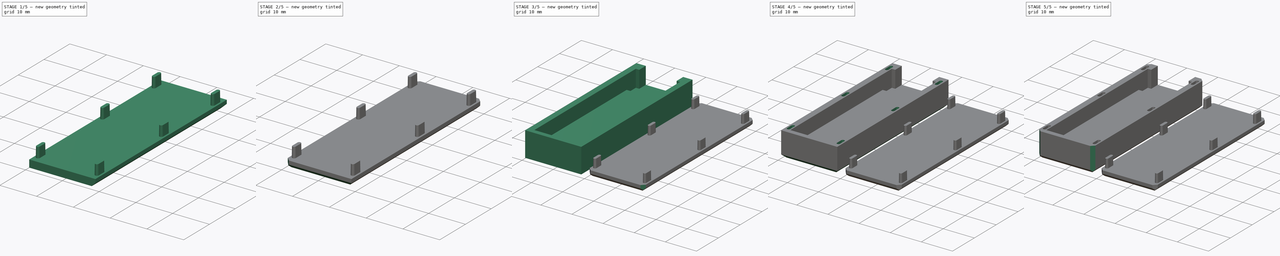
[diagram: build sequence overview — one tinted view per stage of 5, left to right]
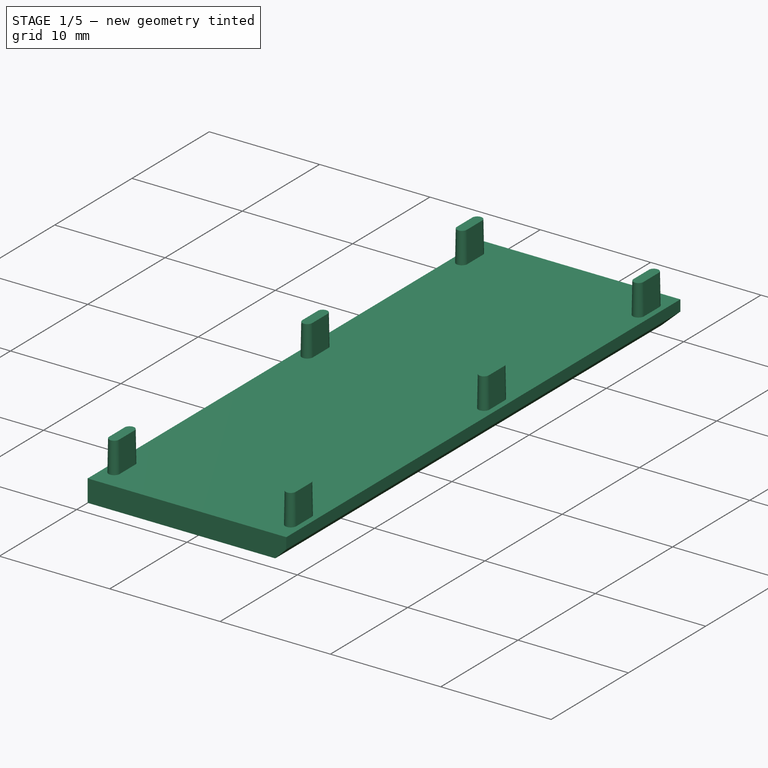
[diagram: stage 1 of 5 — iso view after this stage's code; geometry added in this stage tinted green]
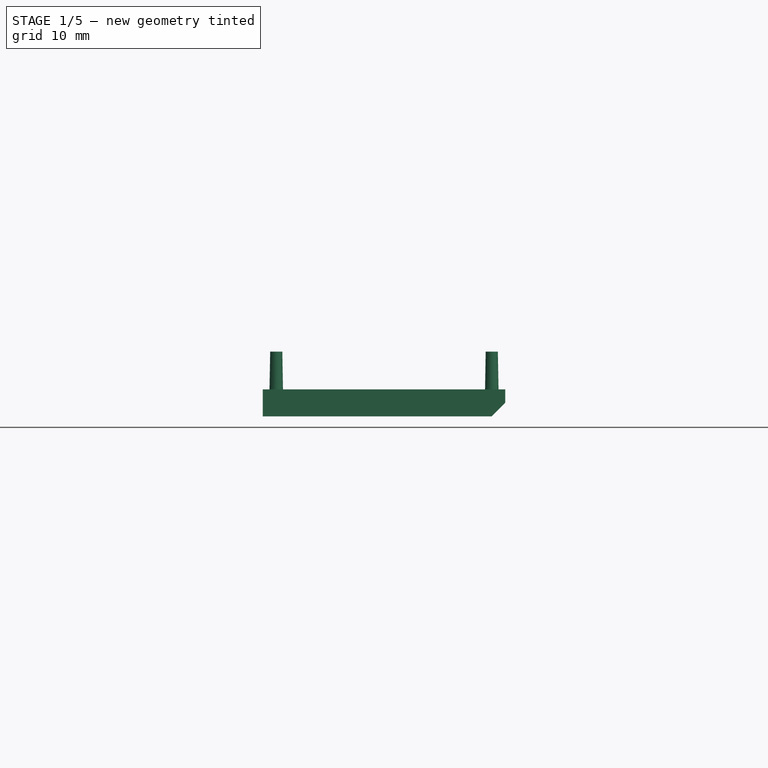
[diagram: stage 1 of 5 — front view after this stage's code; geometry added in this stage tinted green]
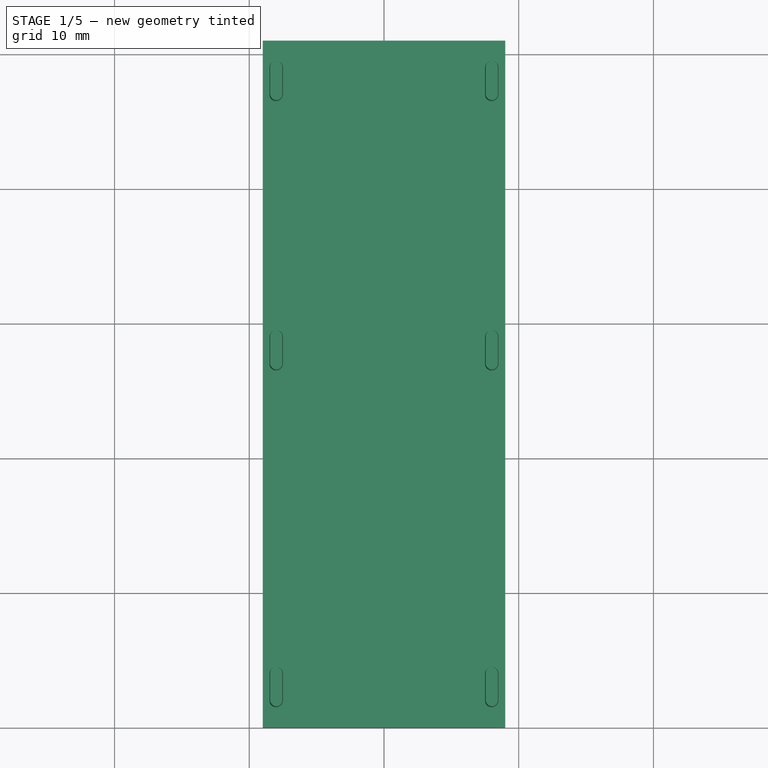
[diagram: stage 1 of 5 — top view after this stage's code; geometry added in this stage tinted green]
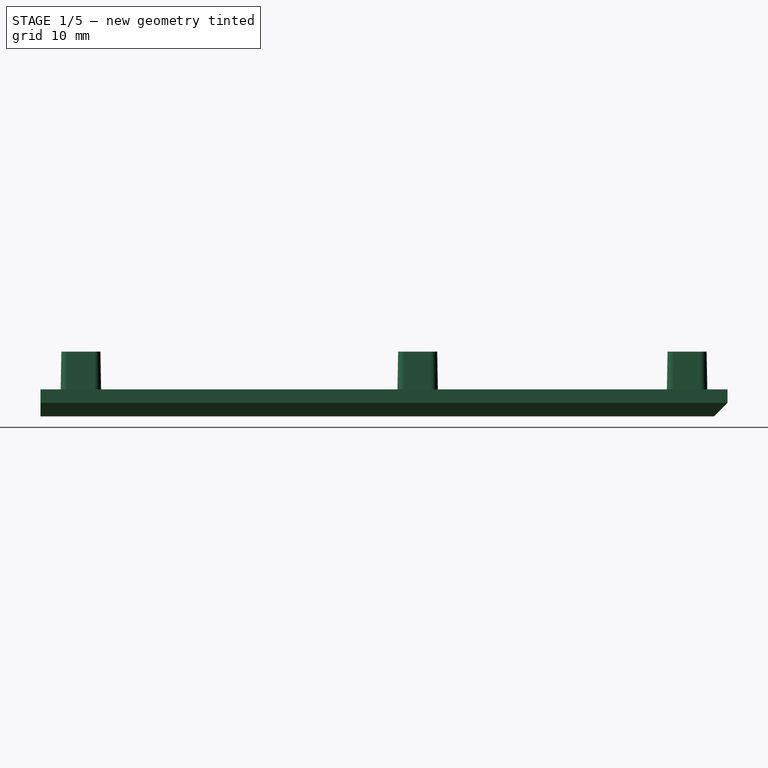
[diagram: stage 1 of 5 — right view after this stage's code; geometry added in this stage tinted green]
FCSTD DOCUMENT  (FreeCAD 0.21R33668 +26 (Git))
Label: flash16g
License: All rights reserved
LicenseURL: http://en.wikipedia.org/wiki/All_rights_reserved
objects: PartDesign::Chamfer×16, Sketcher::SketchObject×6, PartDesign::Pad×3, PartDesign::Pocket×3, PartDesign::Body×2
note: 52 computed .brp shape members not serialized (recipe doc carries the construction recipe); baked Part::Feature solids carry a one-line shape summary decoded from their .brp

FEATURE [Sketcher::SketchObject] Sketch005
  FullyConstrained = false
  MapMode = 5
  Support = -> [XY_Plane001]
  sketch-geometry (5):
    g0: LineSegment StartX=11 StartY=51 StartZ=0 EndX=11 EndY=0 EndZ=0
    g1: LineSegment StartX=11 StartY=0 StartZ=0 EndX=29 EndY=0 EndZ=0
    g2: LineSegment StartX=29 StartY=0 StartZ=0 EndX=29 EndY=51 EndZ=0
    g3: LineSegment StartX=29 StartY=51 StartZ=0 EndX=11 EndY=51 EndZ=0
    g4: GeomPoint X=20 Y=25.5 Z=0
  constraints (11):
    c: Coincident(g0,g1)
    c: Coincident(g1,g2)
    c: Coincident(g2,g3)
    c: Coincident(g3,g0)
    c: Horizontal(g1)
    c: Horizontal(g3)
    c: Vertical(g0)
    c: Vertical(g2)
    c: Symmetric(g1,g0,g4)
    c: DistanceX(g1,g1) = 18
    c: DistanceY(g2,g2) = 51
FEATURE [PartDesign::Pad] Pad001
  Direction = (0,0,1)
  Length = 2
  Length2 = 10
  Profile = -> Sketch005
  ReferenceAxis = -> Sketch005 [N_Axis]
  Type = 0
FEATURE [Sketcher::SketchObject] Sketch006
  FullyConstrained = false
  MapMode = 5
  Placement = pos=(0,0,2) rot=(0,0,1;0rad)
  Support = -> [Pad001]
  sketch-geometry (24):
    g0: ArcOfCircle CenterX=12 CenterY=49 CenterZ=0 NormalX=0 NormalY=0 NormalZ=1 AngleXU=0 Radius=0.5 StartAngle=0 EndAngle=3.14159
    g1: ArcOfCircle CenterX=12 CenterY=47 CenterZ=0 NormalX=0 NormalY=0 NormalZ=1 AngleXU=0 Radius=0.5 StartAngle=3.14159 EndAngle=6.28319
    g2: LineSegment StartX=11.5 StartY=49 StartZ=0 EndX=11.5 EndY=47 EndZ=0
    g3: LineSegment StartX=12.5 StartY=47 StartZ=0 EndX=12.5 EndY=49 EndZ=0
    g4: ArcOfCircle CenterX=28 CenterY=49 CenterZ=0 NormalX=0 NormalY=0 NormalZ=1 AngleXU=0 Radius=0.5 StartAngle=0 EndAngle=3.14159
    g5: ArcOfCircle CenterX=28 CenterY=47 CenterZ=0 NormalX=0 NormalY=0 NormalZ=1 AngleXU=0 Radius=0.5 StartAngle=3.14159 EndAngle=6.28319
    g6: LineSegment StartX=27.5 StartY=49 StartZ=0 EndX=27.5 EndY=47 EndZ=0
    g7: LineSegment StartX=28.5 StartY=47 StartZ=0 EndX=28.5 EndY=49 EndZ=0
    g8: ArcOfCircle CenterX=12 CenterY=29 CenterZ=0 NormalX=0 NormalY=0 NormalZ=1 AngleXU=0 Radius=0.5 StartAngle=0 EndAngle=3.14159
    g9: ArcOfCircle CenterX=12 CenterY=27 CenterZ=0 NormalX=0 NormalY=0 NormalZ=1 AngleXU=0 Radius=0.5 StartAngle=3.14159 EndAngle=6.28319
    g10: LineSegment StartX=11.5 StartY=29 StartZ=0 EndX=11.5 EndY=27 EndZ=0
    g11: LineSegment StartX=12.5 StartY=27 StartZ=0 EndX=12.5 EndY=29 EndZ=0
    g12: ArcOfCircle CenterX=28 CenterY=29 CenterZ=0 NormalX=0 NormalY=0 NormalZ=1 AngleXU=0 Radius=0.5 StartAngle=0 EndAngle=3.14159
    g13: ArcOfCircle CenterX=28 CenterY=27 CenterZ=0 NormalX=0 NormalY=0 NormalZ=1 AngleXU=0 Radius=0.5 StartAngle=3.14159 EndAngle=6.28319
    g14: LineSegment StartX=27.5 StartY=29 StartZ=0 EndX=27.5 EndY=27 EndZ=0
    g15: LineSegment StartX=28.5 StartY=27 StartZ=0 EndX=28.5 EndY=29 EndZ=0
    g16: ArcOfCircle CenterX=12 CenterY=4 CenterZ=0 NormalX=0 NormalY=0 NormalZ=1 AngleXU=0 Radius=0.5 StartAngle=0 EndAngle=3.14159
    g17: ArcOfCircle CenterX=12 CenterY=2 CenterZ=0 NormalX=0 NormalY=0 NormalZ=1 AngleXU=0 Radius=0.5 StartAngle=3.14159 EndAngle=6.28319
    g18: LineSegment StartX=11.5 StartY=4 StartZ=0 EndX=11.5 EndY=2 EndZ=0
    g19: LineSegment StartX=12.5 StartY=2 StartZ=0 EndX=12.5 EndY=4 EndZ=0
    g20: ArcOfCircle CenterX=28 CenterY=4 CenterZ=0 NormalX=0 NormalY=0 NormalZ=1 AngleXU=0 Radius=0.5 StartAngle=0 EndAngle=3.14159
    g21: ArcOfCircle CenterX=28 CenterY=2 CenterZ=0 NormalX=0 NormalY=0 NormalZ=1 AngleXU=0 Radius=0.5 StartAngle=3.14159 EndAngle=6.28319
    g22: LineSegment StartX=27.5 StartY=4 StartZ=0 EndX=27.5 EndY=2 EndZ=0
    g23: LineSegment StartX=28.5 StartY=2 StartZ=0 EndX=28.5 EndY=4 EndZ=0
  constraints (36):
    c: Tangent(g0,g2) = -1.5708
    c: Tangent(g2,g1) = -1.5708
    c: Tangent(g1,g3) = -1.5708
    c: Tangent(g3,g0) = -1.5708
    c: Equal(g0,g1)
    c: Vertical(g2)
    c: Tangent(g4,g6) = -1.5708
    c: Tangent(g6,g5) = -1.5708
    c: Tangent(g5,g7) = -1.5708
    c: Tangent(g7,g4) = -1.5708
    c: Equal(g4,g5)
    c: Vertical(g6)
    c: Tangent(g8,g10) = -1.5708
    c: Tangent(g10,g9) = -1.5708
    c: Tangent(g9,g11) = -1.5708
    c: Tangent(g11,g8) = -1.5708
    c: Equal(g8,g9)
    c: Vertical(g10)
    c: Tangent(g12,g14) = -1.5708
    c: Tangent(g14,g13) = -1.5708
    c: Tangent(g13,g15) = -1.5708
    c: Tangent(g15,g12) = -1.5708
    c: Equal(g12,g13)
    c: Vertical(g14)
    c: Tangent(g16,g18) = -1.5708
    c: Tangent(g18,g17) = -1.5708
    c: Tangent(g17,g19) = -1.5708
    c: Tangent(g19,g16) = -1.5708
    c: Equal(g16,g17)
    c: Vertical(g18)
    c: Tangent(g20,g22) = -1.5708
    c: Tangent(g22,g21) = -1.5708
    c: Tangent(g21,g23) = -1.5708
    c: Tangent(g23,g20) = -1.5708
    c: Equal(g20,g21)
    c: Vertical(g22)
FEATURE [PartDesign::Pad] Pad002
  BaseFeature = -> Pad001
  Direction = (0,0,1)
  Length = 2.8
  Length2 = 10
  Profile = -> Sketch006
  ReferenceAxis = -> Sketch006 [N_Axis]
  TaperAngle = -1
  Type = 0
FEATURE [PartDesign::Chamfer] Chamfer
  Angle = 45
  Base = -> Pad002 [Edge6]
  BaseFeature = -> Pad002
  ChamferType = 0
  FlipDirection = false
  Size = 1
  Size2 = 1
  SupportTransform = false
  UseAllEdges = false
FEATURE [PartDesign::Chamfer] Chamfer001
  Angle = 45
  Base = -> Chamfer [Edge38]
  BaseFeature = -> Chamfer
  ChamferType = 0
  FlipDirection = false
  Size = 1
  Size2 = 1
  SupportTransform = false
  UseAllEdges = false
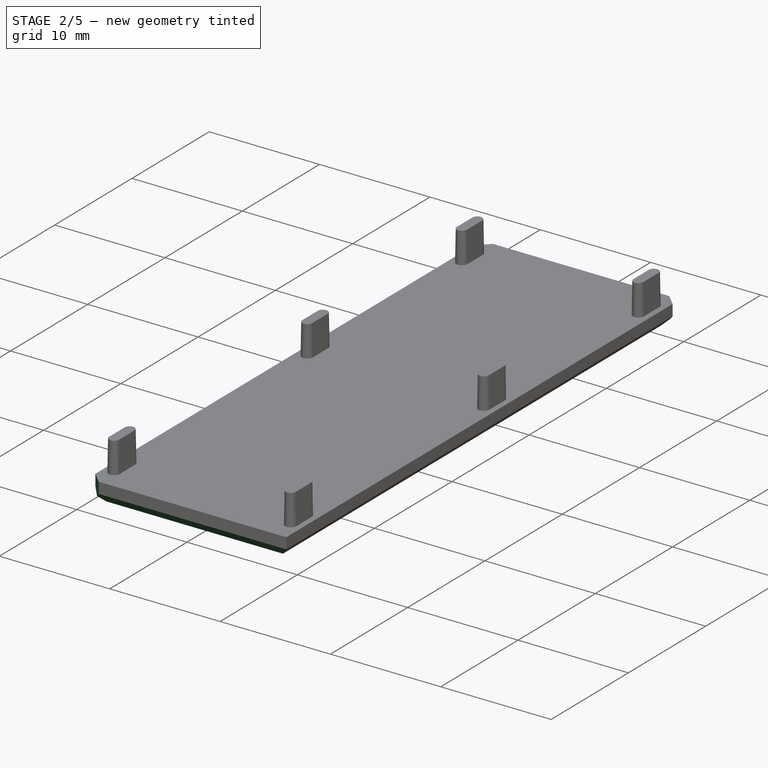
[diagram: stage 2 of 5 — iso view after this stage's code; geometry added in this stage tinted green]
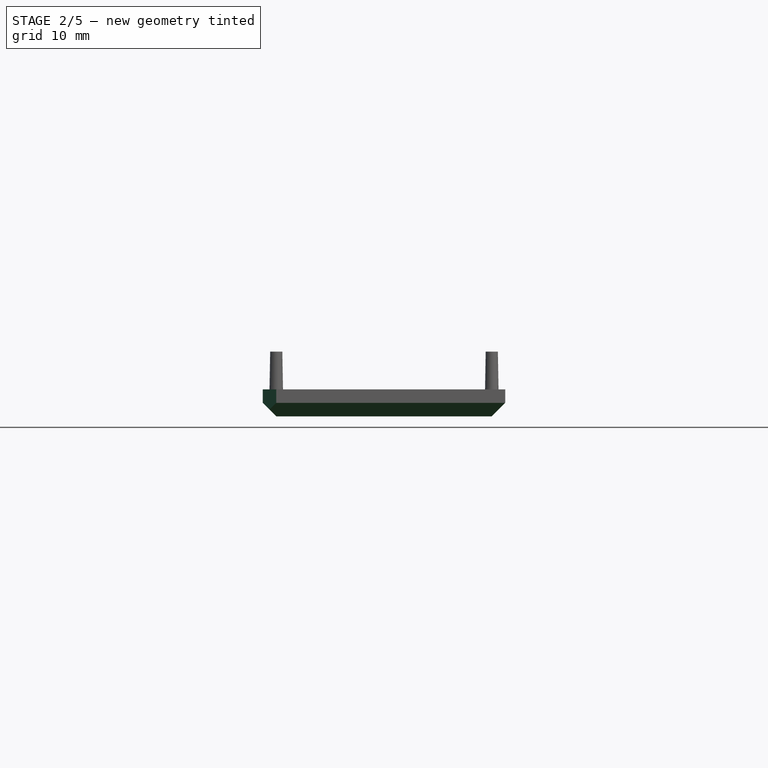
[diagram: stage 2 of 5 — front view after this stage's code; geometry added in this stage tinted green]
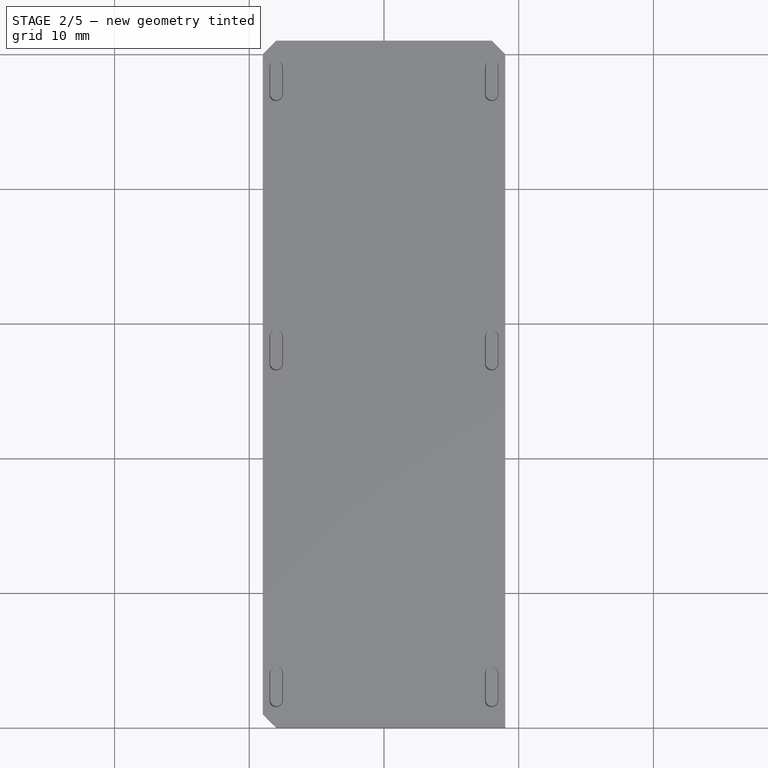
[diagram: stage 2 of 5 — top view after this stage's code; geometry added in this stage tinted green]
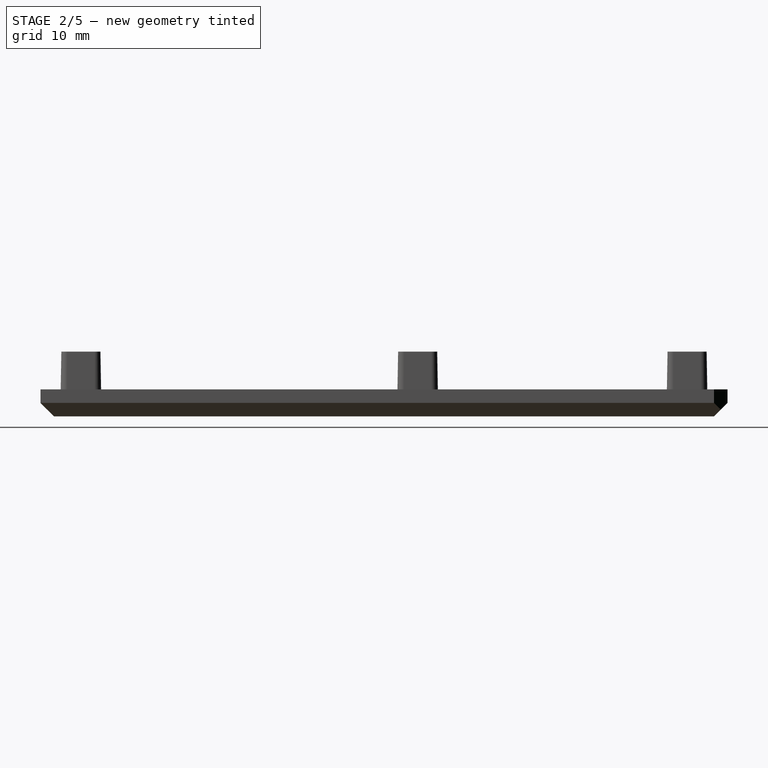
[diagram: stage 2 of 5 — right view after this stage's code; geometry added in this stage tinted green]
FEATURE [PartDesign::Chamfer] Chamfer002
  Angle = 45
  Base = -> Chamfer001 [Edge7]
  BaseFeature = -> Chamfer001
  ChamferType = 0
  FlipDirection = false
  Size = 1
  Size2 = 1
  SupportTransform = false
  UseAllEdges = false
FEATURE [PartDesign::Chamfer] Chamfer003
  Angle = 45
  Base = -> Chamfer002 [Edge4]
  BaseFeature = -> Chamfer002
  ChamferType = 0
  FlipDirection = false
  Size = 1
  Size2 = 1
  SupportTransform = false
  UseAllEdges = false
FEATURE [PartDesign::Body] Body  label="Тело"
  Group = -> [Sketch,Pad,Sketch001,Pocket,Sketch002,Pocket001,Sketch003,Pocket002,Chamfer004,Chamfer005,Chamfer006,Chamfer007,Chamfer008,Chamfer009,Chamfer010,Chamfer011]
  Origin = -> Origin
  Tip = -> Chamfer011
FEATURE [PartDesign::Chamfer] Chamfer012
  Angle = 45
  Base = -> Chamfer003 [Edge19]
  BaseFeature = -> Chamfer003
  ChamferType = 0
  FlipDirection = false
  Size = 1
  Size2 = 1
  SupportTransform = false
  UseAllEdges = false
FEATURE [PartDesign::Chamfer] Chamfer013
  Angle = 45
  Base = -> Chamfer012 [Edge19]
  BaseFeature = -> Chamfer012
  ChamferType = 0
  FlipDirection = false
  Size = 1
  Size2 = 1
  SupportTransform = false
  UseAllEdges = false
FEATURE [PartDesign::Chamfer] Chamfer014
  Angle = 45
  Base = -> Chamfer013 [Edge50]
  BaseFeature = -> Chamfer013
  ChamferType = 0
  FlipDirection = false
  Size = 1
  Size2 = 1
  SupportTransform = false
  UseAllEdges = false
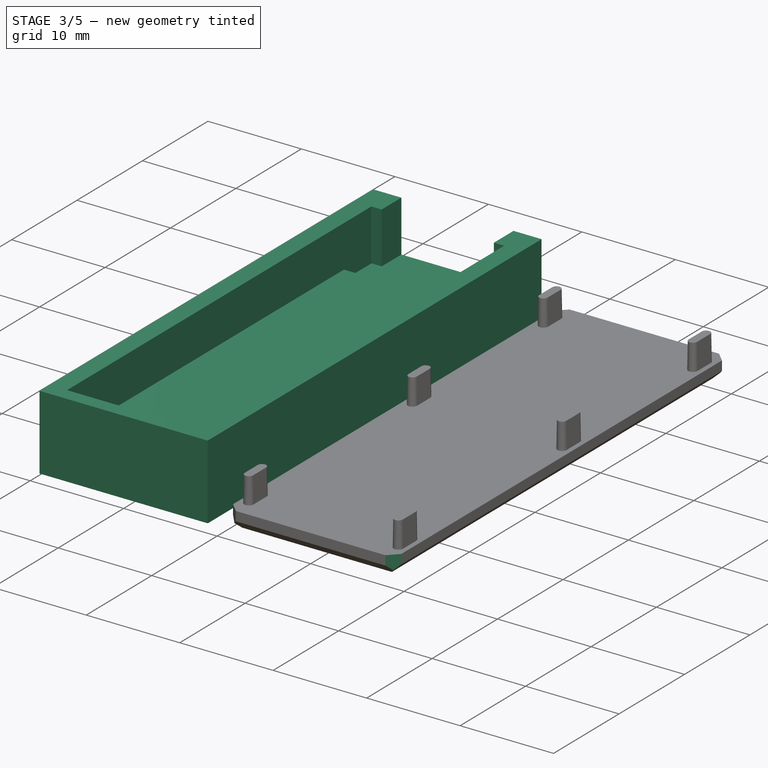
[diagram: stage 3 of 5 — iso view after this stage's code; geometry added in this stage tinted green]
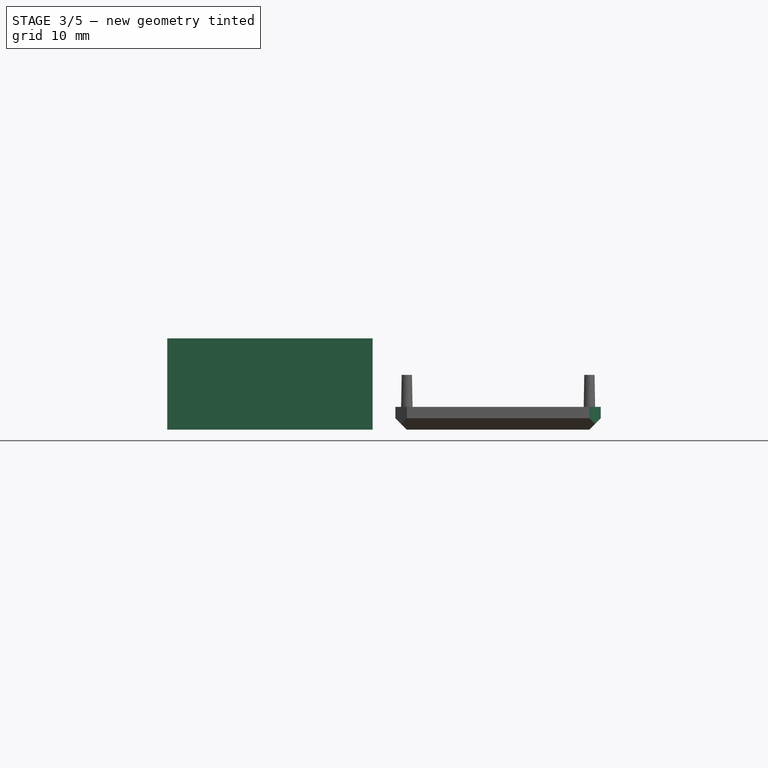
[diagram: stage 3 of 5 — front view after this stage's code; geometry added in this stage tinted green]
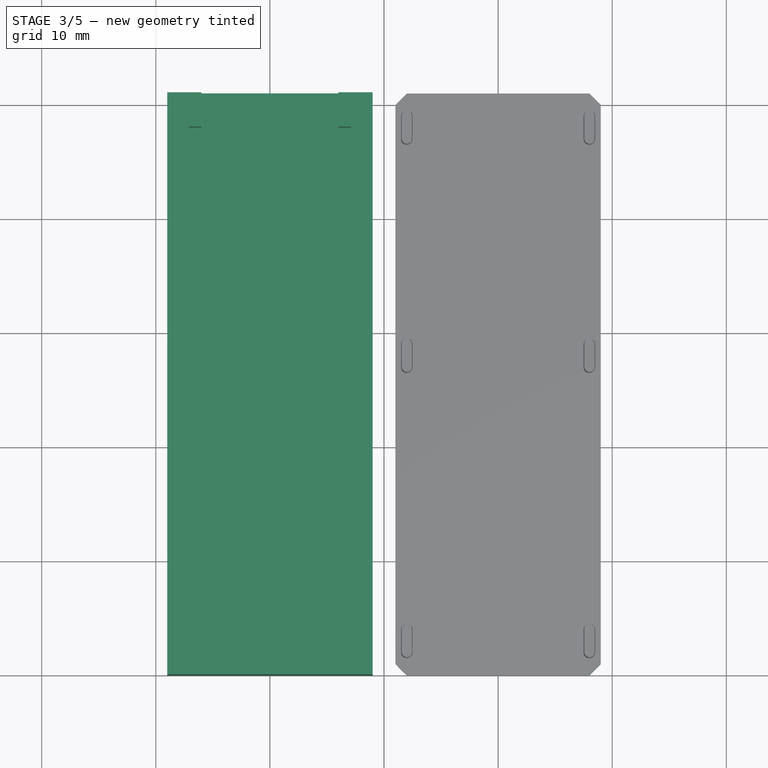
[diagram: stage 3 of 5 — top view after this stage's code; geometry added in this stage tinted green]
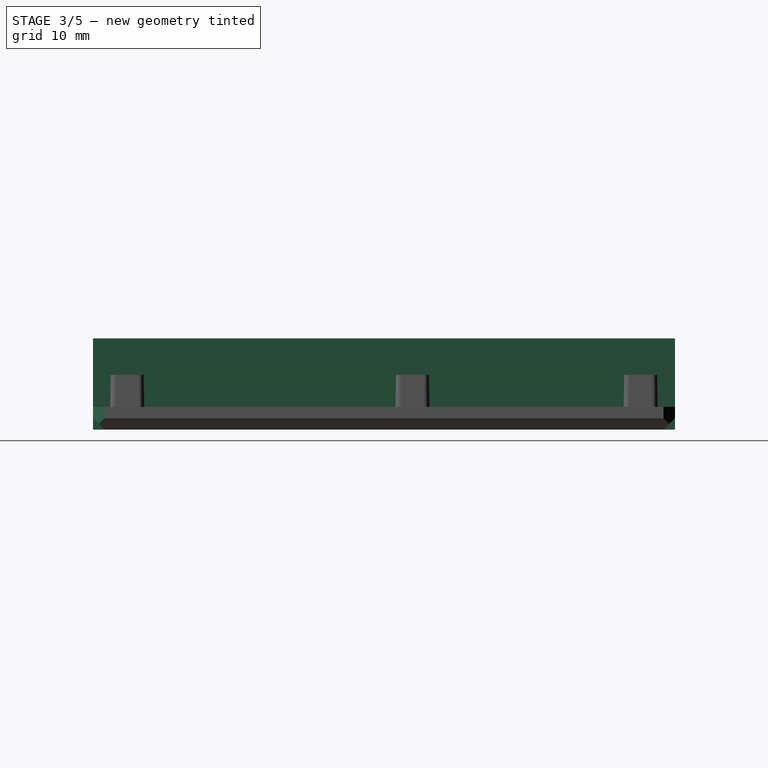
[diagram: stage 3 of 5 — right view after this stage's code; geometry added in this stage tinted green]
FEATURE [Sketcher::SketchObject] Sketch
  FullyConstrained = false
  MapMode = 5
  Support = -> [XY_Plane]
  sketch-geometry (6):
    g0: LineSegment StartX=-9 StartY=51 StartZ=0 EndX=-9 EndY=0 EndZ=0
    g1: LineSegment StartX=-9 StartY=0 StartZ=0 EndX=9 EndY=0 EndZ=0
    g2: LineSegment StartX=9 StartY=0 StartZ=0 EndX=9 EndY=51 EndZ=0
    g3: LineSegment StartX=9 StartY=51 StartZ=0 EndX=-9 EndY=51 EndZ=0
    g4: GeomPoint X=0 Y=25.5 Z=0
    g5: GeomPoint X=30 Y=25.4801 Z=0
  constraints (13):
    c: Coincident(g0,g1)
    c: Coincident(g1,g2)
    c: Coincident(g2,g3)
    c: Coincident(g3,g0)
    c: Horizontal(g1)
    c: Horizontal(g3)
    c: Vertical(g0)
    c: Vertical(g2)
    c: Symmetric(g1,g0,g4)
    c: PointOnObject(g4,g-2)
    c: PointOnObject(g1,g-1)
    c: DistanceY(g2,g2) = 51
    c: DistanceX(g3,g3) = 18
FEATURE [PartDesign::Pad] Pad
  Direction = (0,0,1)
  Length = 8
  Length2 = 10
  Profile = -> Sketch
  ReferenceAxis = -> Sketch [N_Axis]
  Type = 0
FEATURE [Sketcher::SketchObject] Sketch001
  FullyConstrained = false
  MapMode = 5
  Placement = pos=(0,0,8) rot=(0,0,1;0rad)
  Support = -> [Pad]
  sketch-geometry (5):
    g0: LineSegment StartX=-7.1 StartY=43.8 StartZ=0 EndX=-7.1 EndY=1.5 EndZ=0
    g1: LineSegment StartX=-7.1 StartY=1.5 StartZ=0 EndX=7.1 EndY=1.5 EndZ=0
    g2: LineSegment StartX=7.1 StartY=1.5 StartZ=0 EndX=7.1 EndY=43.8 EndZ=0
    g3: LineSegment StartX=7.1 StartY=43.8 StartZ=0 EndX=-7.1 EndY=43.8 EndZ=0
    g4: GeomPoint X=0 Y=22.65 Z=0
  constraints (12):
    c: Coincident(g0,g1)
    c: Coincident(g1,g2)
    c: Coincident(g2,g3)
    c: Coincident(g3,g0)
    c: Horizontal(g1)
    c: Horizontal(g3)
    c: Vertical(g0)
    c: Vertical(g2)
    c: Symmetric(g1,g0,g4)
    c: PointOnObject(g4,g-2)
    c: DistanceY(g2,g2) = 42.3
    c: Distance(g0,g1) = 14.2
FEATURE [PartDesign::Pocket] Pocket
  BaseFeature = -> Pad
  Direction = (0,0,-1)
  Length = 4.5
  Length2 = 5
  Profile = -> Sketch001
  ReferenceAxis = -> Sketch001 [N_Axis]
  Type = 0
FEATURE [Sketcher::SketchObject] Sketch002
  FullyConstrained = false
  MapMode = 5
  Placement = pos=(0,0,8) rot=(0,0,1;0rad)
  Support = -> [Pocket]
  sketch-geometry (10):
    g0: LineSegment StartX=-6 StartY=51 StartZ=0 EndX=-6 EndY=48 EndZ=0
    g1: LineSegment StartX=6 StartY=48 StartZ=0 EndX=6 EndY=51 EndZ=0
    g2: LineSegment StartX=6 StartY=51 StartZ=0 EndX=-6 EndY=51 EndZ=0
    g3: GeomPoint X=0 Y=49.5 Z=0
    g4: LineSegment StartX=-7.1 StartY=48 StartZ=0 EndX=-7.1 EndY=43.8 EndZ=0
    g5: LineSegment StartX=-7.1 StartY=43.8 StartZ=0 EndX=7.1 EndY=43.8 EndZ=0
    g6: LineSegment StartX=7.1 StartY=43.8 StartZ=0 EndX=7.1 EndY=48 EndZ=0
    g7: GeomPoint X=0 Y=45.9 Z=0
    g8: LineSegment StartX=-7.1 StartY=48 StartZ=0 EndX=-6 EndY=48 EndZ=0
    g9: LineSegment StartX=6 StartY=48 StartZ=0 EndX=7.1 EndY=48 EndZ=0
  constraints (24):
    c: Coincident(g1,g2)
    c: Coincident(g2,g0)
    c: Horizontal(g2)
    c: Vertical(g0)
    c: Vertical(g1)
    c: Symmetric(g1,g0,g3)
    c: PointOnObject(g3,g-2)
    c: DistanceY(g1,g1) = 3
    c: DistanceX(g0,g1) = 12
    c: Coincident(g4,g5)
    c: Coincident(g5,g6)
    c: Horizontal(g5)
    c: Vertical(g4)
    c: Vertical(g6)
    c: Symmetric(g5,g4,g7)
    c: PointOnObject(g7,g-2)
    c: DistanceX(g4,g6) = 14.2
    c: DistanceY(g6,g6) = 4.2
    c: Coincident(g8,g4)
    c: Coincident(g8,g0)
    c: Horizontal(g8)
    c: Coincident(g9,g1)
    c: Coincident(g9,g6)
    c: Horizontal(g9)
FEATURE [PartDesign::Pocket] Pocket001
  BaseFeature = -> Pocket
  Direction = (0,0,-1)
  Length = 5.5
  Length2 = 5
  Profile = -> Sketch002
  ReferenceAxis = -> Sketch002 [N_Axis]
  Type = 0
FEATURE [PartDesign::Chamfer] Chamfer015
  Angle = 45
  Base = -> Chamfer014 [Edge52]
  BaseFeature = -> Chamfer014
  ChamferType = 0
  FlipDirection = false
  Size = 1
  Size2 = 1
  SupportTransform = false
  UseAllEdges = false
FEATURE [PartDesign::Body] Body001  label="Тело001"
  Group = -> [Sketch005,Pad001,Sketch006,Pad002,Chamfer,Chamfer001,Chamfer002,Chamfer003,Chamfer012,Chamfer013,Chamfer014,Chamfer015]
  Origin = -> Origin001
  Tip = -> Chamfer015
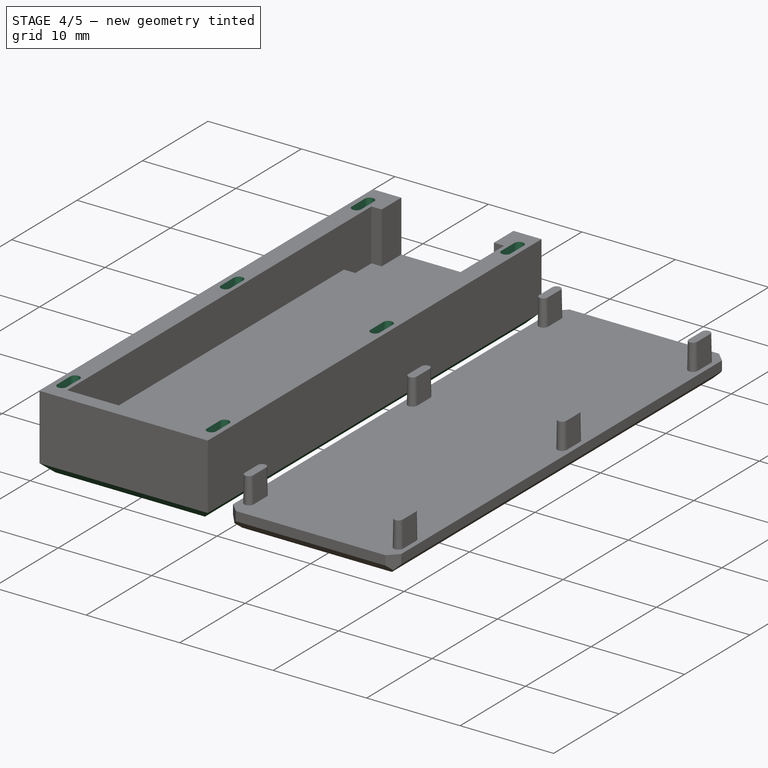
[diagram: stage 4 of 5 — iso view after this stage's code; geometry added in this stage tinted green]
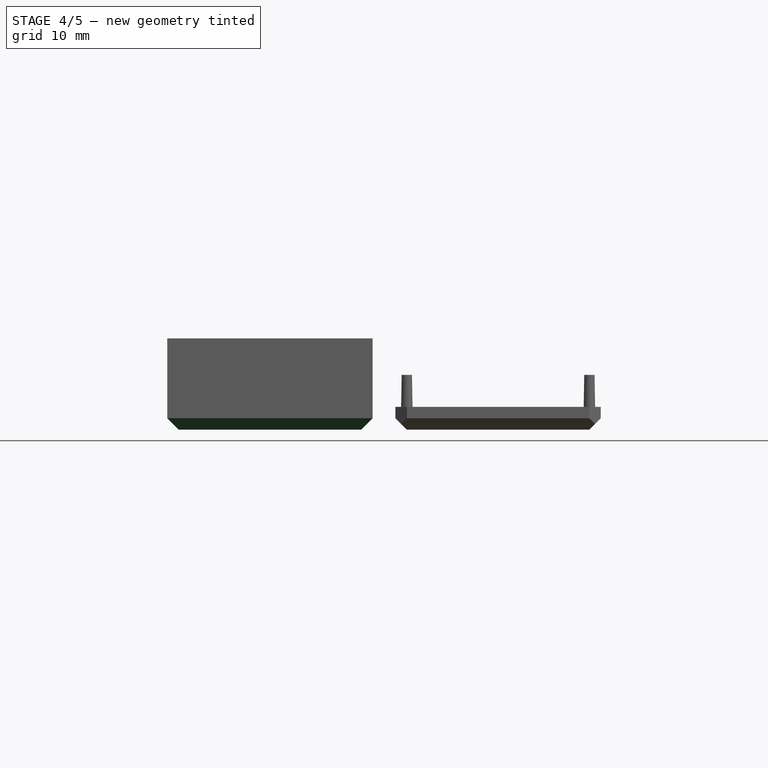
[diagram: stage 4 of 5 — front view after this stage's code; geometry added in this stage tinted green]
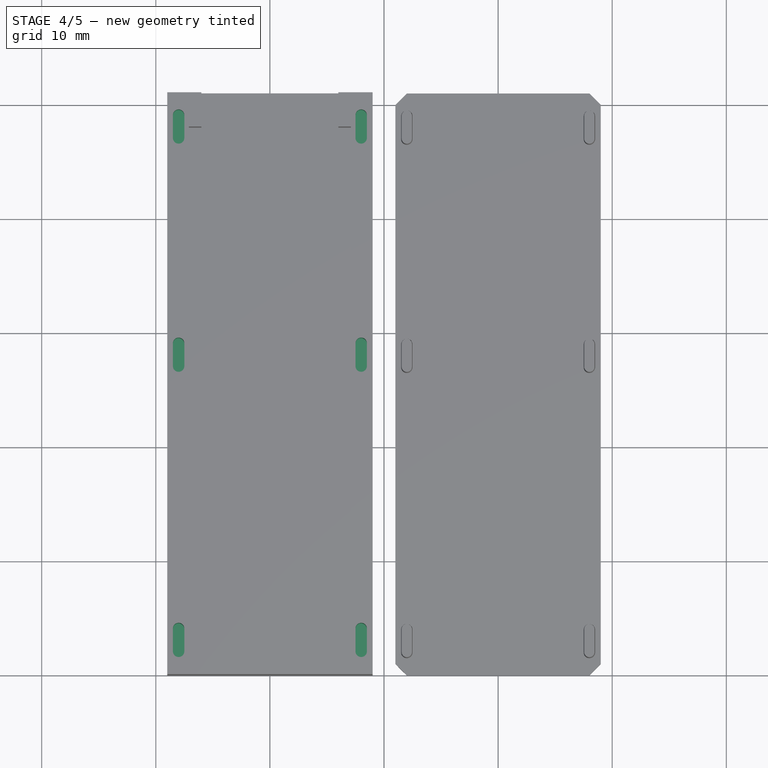
[diagram: stage 4 of 5 — top view after this stage's code; geometry added in this stage tinted green]
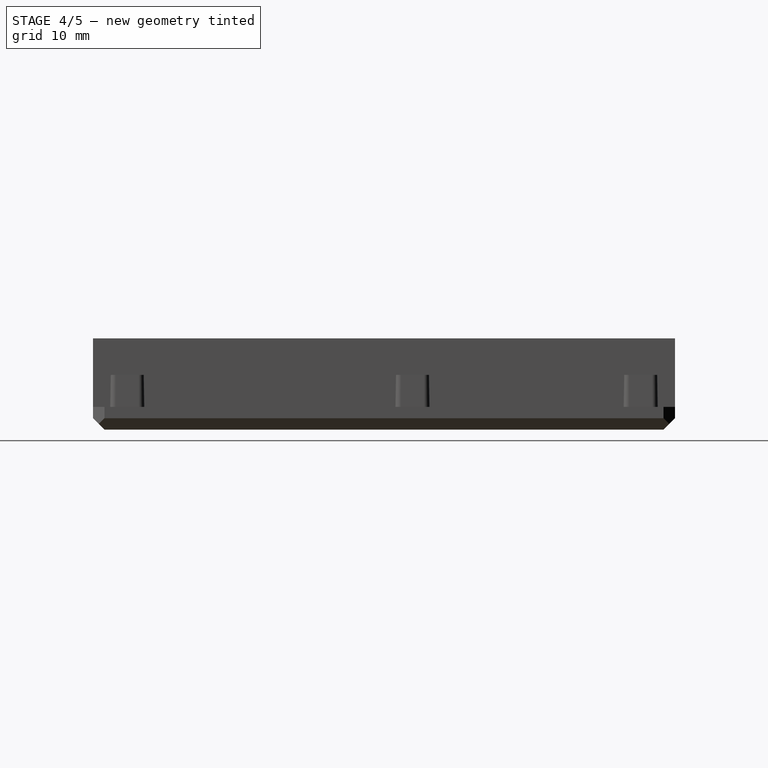
[diagram: stage 4 of 5 — right view after this stage's code; geometry added in this stage tinted green]
FEATURE [Sketcher::SketchObject] Sketch003
  FullyConstrained = false
  MapMode = 5
  Placement = pos=(0,0,8) rot=(0,0,1;0rad)
  Support = -> [Pocket001]
  sketch-geometry (48):
    g0: ArcOfCircle CenterX=-8 CenterY=49 CenterZ=0 NormalX=0 NormalY=0 NormalZ=1 AngleXU=0 Radius=0.5 StartAngle=0 EndAngle=3.14159
    g1: ArcOfCircle CenterX=-8 CenterY=47 CenterZ=0 NormalX=0 NormalY=0 NormalZ=1 AngleXU=0 Radius=0.5 StartAngle=3.14159 EndAngle=6.28319
    g2: LineSegment StartX=-8.5 StartY=49 StartZ=0 EndX=-8.5 EndY=47 EndZ=0
    g3: LineSegment StartX=-7.5 StartY=47 StartZ=0 EndX=-7.5 EndY=49 EndZ=0
    g4: ArcOfCircle CenterX=8 CenterY=49 CenterZ=0 NormalX=0 NormalY=0 NormalZ=1 AngleXU=0 Radius=0.5 StartAngle=0 EndAngle=3.14159
    g5: ArcOfCircle CenterX=8 CenterY=47 CenterZ=0 NormalX=0 NormalY=0 NormalZ=1 AngleXU=0 Radius=0.5 StartAngle=3.14159 EndAngle=6.28319
    g6: LineSegment StartX=7.5 StartY=49 StartZ=0 EndX=7.5 EndY=47 EndZ=0
    g7: LineSegment StartX=8.5 StartY=47 StartZ=0 EndX=8.5 EndY=49 EndZ=0
    g8: ArcOfCircle CenterX=-8 CenterY=29 CenterZ=0 NormalX=0 NormalY=0 NormalZ=1 AngleXU=0 Radius=0.5 StartAngle=0 EndAngle=3.14159
    g9: ArcOfCircle CenterX=-8 CenterY=27 CenterZ=0 NormalX=0 NormalY=0 NormalZ=1 AngleXU=0 Radius=0.5 StartAngle=3.14159 EndAngle=6.28319
    g10: LineSegment StartX=-8.5 StartY=29 StartZ=0 EndX=-8.5 EndY=27 EndZ=0
    g11: LineSegment StartX=-7.5 StartY=27 StartZ=0 EndX=-7.5 EndY=29 EndZ=0
    g12: ArcOfCircle CenterX=8 CenterY=29 CenterZ=0 NormalX=0 NormalY=0 NormalZ=1 AngleXU=0 Radius=0.5 StartAngle=0 EndAngle=3.14159
    g13: ArcOfCircle CenterX=8 CenterY=27 CenterZ=0 NormalX=0 NormalY=0 NormalZ=1 AngleXU=0 Radius=0.5 StartAngle=3.14159 EndAngle=6.28319
    g14: LineSegment StartX=7.5 StartY=29 StartZ=0 EndX=7.5 EndY=27 EndZ=0
    g15: LineSegment StartX=8.5 StartY=27 StartZ=0 EndX=8.5 EndY=29 EndZ=0
    g16: ArcOfCircle CenterX=-8 CenterY=2 CenterZ=0 NormalX=0 NormalY=0 NormalZ=1 AngleXU=0 Radius=0.5 StartAngle=3.14159 EndAngle=6.28319
    g17: ArcOfCircle CenterX=-8 CenterY=4 CenterZ=0 NormalX=0 NormalY=0 NormalZ=1 AngleXU=0 Radius=0.5 StartAngle=0 EndAngle=3.14159
    g18: LineSegment StartX=-7.5 StartY=2 StartZ=0 EndX=-7.5 EndY=4 EndZ=0
    g19: LineSegment StartX=-8.5 StartY=4 StartZ=0 EndX=-8.5 EndY=2 EndZ=0
    g20: ArcOfCircle CenterX=8 CenterY=2 CenterZ=0 NormalX=0 NormalY=0 NormalZ=1 AngleXU=0 Radius=0.5 StartAngle=3.14159 EndAngle=6.28319
    g21: ArcOfCircle CenterX=8 CenterY=4 CenterZ=0 NormalX=0 NormalY=0 NormalZ=1 AngleXU=0 Radius=0.5 StartAngle=0 EndAngle=3.14159
    g22: LineSegment StartX=8.5 StartY=2 StartZ=0 EndX=8.5 EndY=4 EndZ=0
    g23: LineSegment StartX=7.5 StartY=4 StartZ=0 EndX=7.5 EndY=2 EndZ=0
    g24: ArcOfCircle CenterX=12 CenterY=29 CenterZ=0 NormalX=0 NormalY=0 NormalZ=1 AngleXU=0 Radius=0.5 StartAngle=0 EndAngle=3.14159
    g25: ArcOfCircle CenterX=12 CenterY=27 CenterZ=0 NormalX=0 NormalY=0 NormalZ=1 AngleXU=0 Radius=0.5 StartAngle=3.14159 EndAngle=6.28319
    g26: LineSegment StartX=11.5 StartY=29 StartZ=0 EndX=11.5 EndY=27 EndZ=0
    g27: LineSegment StartX=12.5 StartY=27 StartZ=0 EndX=12.5 EndY=29 EndZ=0
    g28: ArcOfCircle CenterX=28 CenterY=29 CenterZ=0 NormalX=0 NormalY=0 NormalZ=1 AngleXU=0 Radius=0.5 StartAngle=0 EndAngle=3.14159
    g29: ArcOfCircle CenterX=28 CenterY=27 CenterZ=0 NormalX=0 NormalY=0 NormalZ=1 AngleXU=0 Radius=0.5 StartAngle=3.14159 EndAngle=6.28319
    g30: LineSegment StartX=27.5 StartY=29 StartZ=0 EndX=27.5 EndY=27 EndZ=0
    g31: LineSegment StartX=28.5 StartY=27 StartZ=0 EndX=28.5 EndY=29 EndZ=0
    g32: ArcOfCircle CenterX=12 CenterY=2 CenterZ=0 NormalX=0 NormalY=0 NormalZ=1 AngleXU=0 Radius=0.5 StartAngle=3.14159 EndAngle=6.28319
    g33: ArcOfCircle CenterX=12 CenterY=4 CenterZ=0 NormalX=0 NormalY=0 NormalZ=1 AngleXU=0 Radius=0.5 StartAngle=0 EndAngle=3.14159
    g34: LineSegment StartX=12.5 StartY=2 StartZ=0 EndX=12.5 EndY=4 EndZ=0
    g35: LineSegment StartX=11.5 StartY=4 StartZ=0 EndX=11.5 EndY=2 EndZ=0
    g36: ArcOfCircle CenterX=28 CenterY=2 CenterZ=0 NormalX=0 NormalY=0 NormalZ=1 AngleXU=0 Radius=0.5 StartAngle=3.14159 EndAngle=6.28319
    g37: ArcOfCircle CenterX=28 CenterY=4 CenterZ=0 NormalX=0 NormalY=0 NormalZ=1 AngleXU=0 Radius=0.5 StartAngle=0 EndAngle=3.14159
    g38: LineSegment StartX=28.5 StartY=2 StartZ=0 EndX=28.5 EndY=4 EndZ=0
    g39: LineSegment StartX=27.5 StartY=4 StartZ=0 EndX=27.5 EndY=2 EndZ=0
    g40: ArcOfCircle CenterX=12 CenterY=49 CenterZ=0 NormalX=0 NormalY=0 NormalZ=1 AngleXU=0 Radius=0.5 StartAngle=0 EndAngle=3.14159
    g41: ArcOfCircle CenterX=12 CenterY=47 CenterZ=0 NormalX=0 NormalY=0 NormalZ=1 AngleXU=0 Radius=0.5 StartAngle=3.14159 EndAngle=6.28319
    g42: LineSegment StartX=11.5 StartY=49 StartZ=0 EndX=11.5 EndY=47 EndZ=0
    g43: LineSegment StartX=12.5 StartY=47 StartZ=0 EndX=12.5 EndY=49 EndZ=0
    g44: ArcOfCircle CenterX=28 CenterY=49 CenterZ=0 NormalX=0 NormalY=0 NormalZ=1 AngleXU=0 Radius=0.5 StartAngle=0 EndAngle=3.14159
    g45: ArcOfCircle CenterX=28 CenterY=47 CenterZ=0 NormalX=0 NormalY=0 NormalZ=1 AngleXU=0 Radius=0.5 StartAngle=3.14159 EndAngle=6.28319
    g46: LineSegment StartX=27.5 StartY=49 StartZ=0 EndX=27.5 EndY=47 EndZ=0
    g47: LineSegment StartX=28.5 StartY=47 StartZ=0 EndX=28.5 EndY=49 EndZ=0
  constraints (72):
    c: Tangent(g0,g2) = -1.5708
    c: Tangent(g2,g1) = -1.5708
    c: Tangent(g1,g3) = -1.5708
    c: Tangent(g3,g0) = -1.5708
    c: Equal(g0,g1)
    c: Vertical(g2)
    c: Tangent(g4,g6) = -1.5708
    c: Tangent(g6,g5) = -1.5708
    c: Tangent(g5,g7) = -1.5708
    c: Tangent(g7,g4) = -1.5708
    c: Equal(g4,g5)
    c: Vertical(g6)
    c: Tangent(g8,g10) = -1.5708
    c: Tangent(g10,g9) = -1.5708
    c: Tangent(g9,g11) = -1.5708
    c: Tangent(g11,g8) = -1.5708
    c: Equal(g8,g9)
    c: Vertical(g10)
    c: Tangent(g12,g14) = -1.5708
    c: Tangent(g14,g13) = -1.5708
    c: Tangent(g13,g15) = -1.5708
    c: Tangent(g15,g12) = -1.5708
    c: Equal(g12,g13)
    c: Vertical(g14)
    c: Tangent(g16,g18) = -1.5708
    c: Tangent(g18,g17) = -1.5708
    c: Tangent(g17,g19) = -1.5708
    c: Tangent(g19,g16) = -1.5708
    c: Equal(g16,g17)
    c: Vertical(g18)
    c: Tangent(g20,g22) = -1.5708
    c: Tangent(g22,g21) = -1.5708
    c: Tangent(g21,g23) = -1.5708
    c: Tangent(g23,g20) = -1.5708
    c: Equal(g20,g21)
    c: Vertical(g22)
    c: Tangent(g40,g42) = -1.5708
    c: Tangent(g42,g41) = -1.5708
    c: Tangent(g41,g43) = -1.5708
    c: Tangent(g43,g40) = -1.5708
    c: Equal(g40,g41)
    c: Vertical(g42)
    c: Tangent(g44,g46) = -1.5708
    c: Tangent(g46,g45) = -1.5708
    c: Tangent(g45,g47) = -1.5708
    c: Tangent(g47,g44) = -1.5708
    c: Equal(g44,g45)
    c: Vertical(g46)
    c: Tangent(g24,g26) = -1.5708
    c: Tangent(g26,g25) = -1.5708
    c: Tangent(g25,g27) = -1.5708
    c: Tangent(g27,g24) = -1.5708
    c: Equal(g24,g25)
    c: Vertical(g26)
    c: Tangent(g28,g30) = -1.5708
    c: Tangent(g30,g29) = -1.5708
    c: Tangent(g29,g31) = -1.5708
    c: Tangent(g31,g28) = -1.5708
    c: Equal(g28,g29)
    c: Vertical(g30)
    c: Tangent(g32,g34) = -1.5708
    c: Tangent(g34,g33) = -1.5708
    c: Tangent(g33,g35) = -1.5708
    c: Tangent(g35,g32) = -1.5708
    c: Equal(g32,g33)
    c: Vertical(g34)
    c: Tangent(g36,g38) = -1.5708
    c: Tangent(g38,g37) = -1.5708
    c: Tangent(g37,g39) = -1.5708
    c: Tangent(g39,g36) = -1.5708
    c: Equal(g36,g37)
    c: Vertical(g38)
FEATURE [PartDesign::Pocket] Pocket002
  BaseFeature = -> Pocket001
  Direction = (0,0,-1)
  Length = 3
  Length2 = 5
  Profile = -> Sketch003
  ReferenceAxis = -> Sketch003 [N_Axis]
  Type = 0
FEATURE [PartDesign::Chamfer] Chamfer004
  Angle = 45
  Base = -> Pocket002 [Edge13]
  BaseFeature = -> Pocket002
  ChamferType = 0
  FlipDirection = false
  Size = 1
  Size2 = 1
  SupportTransform = false
  UseAllEdges = false
FEATURE [PartDesign::Chamfer] Chamfer005
  Angle = 45
  Base = -> Chamfer004 [Edge4]
  BaseFeature = -> Chamfer004
  ChamferType = 0
  FlipDirection = false
  Size = 1
  Size2 = 1
  SupportTransform = false
  UseAllEdges = false
FEATURE [PartDesign::Chamfer] Chamfer006
  Angle = 45
  Base = -> Chamfer005 [Edge5]
  BaseFeature = -> Chamfer005
  ChamferType = 0
  FlipDirection = false
  Size = 1
  Size2 = 1
  SupportTransform = false
  UseAllEdges = false
FEATURE [PartDesign::Chamfer] Chamfer007
  Angle = 45
  Base = -> Chamfer006 [Edge9]
  BaseFeature = -> Chamfer006
  ChamferType = 0
  FlipDirection = false
  Size = 1
  Size2 = 1
  SupportTransform = false
  UseAllEdges = false
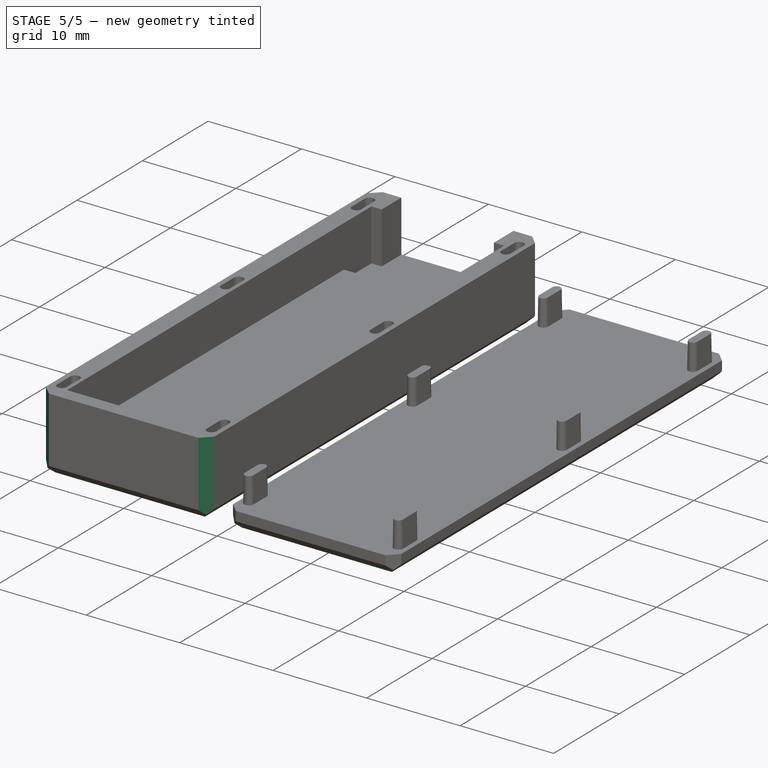
[diagram: stage 5 of 5 — iso view after this stage's code; geometry added in this stage tinted green]
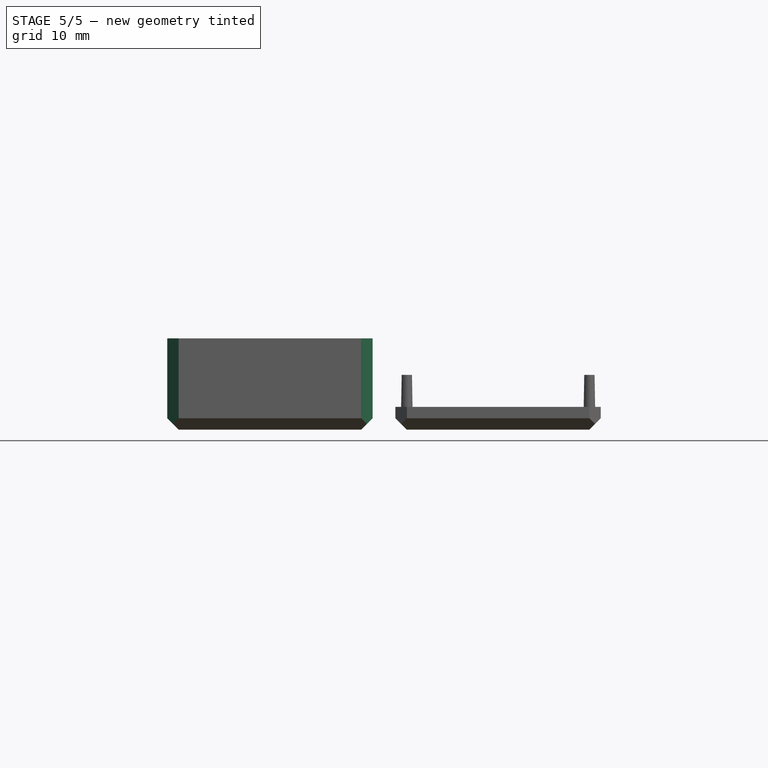
[diagram: stage 5 of 5 — front view after this stage's code; geometry added in this stage tinted green]
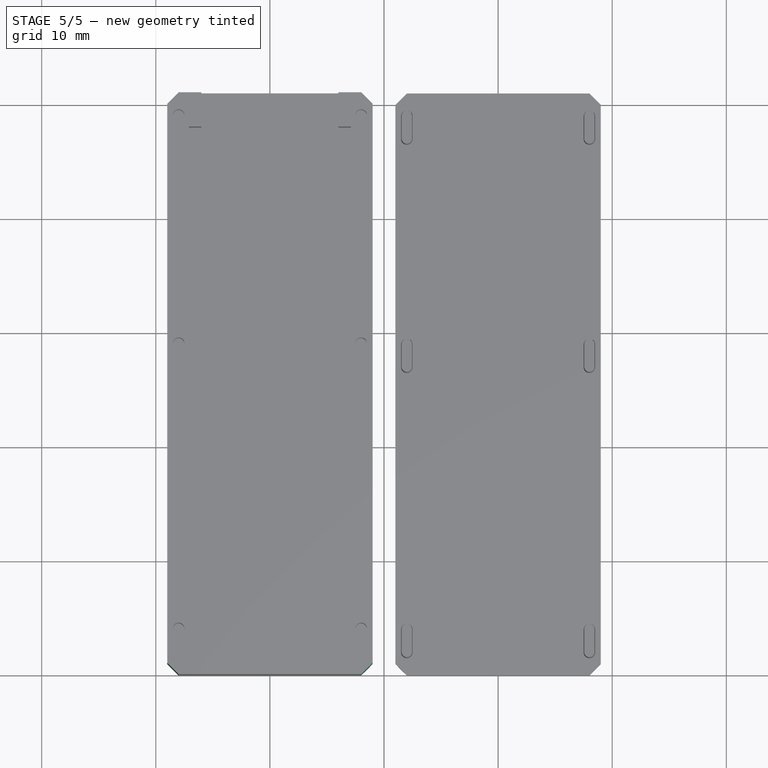
[diagram: stage 5 of 5 — top view after this stage's code; geometry added in this stage tinted green]
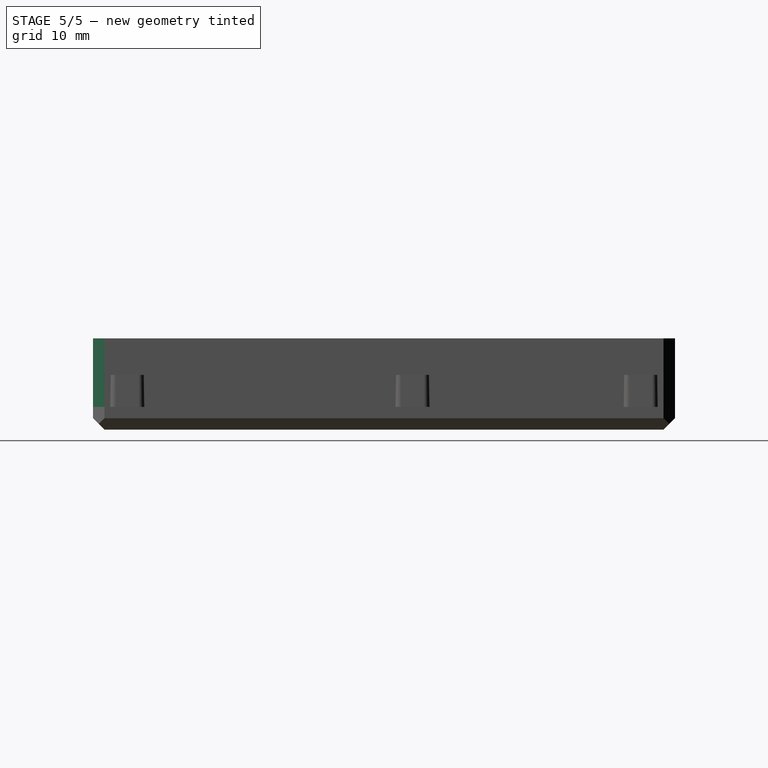
[diagram: stage 5 of 5 — right view after this stage's code; geometry added in this stage tinted green]
FEATURE [PartDesign::Chamfer] Chamfer008
  Angle = 45
  Base = -> Chamfer007 [Edge2]
  BaseFeature = -> Chamfer007
  ChamferType = 0
  FlipDirection = false
  Size = 1
  Size2 = 1
  SupportTransform = false
  UseAllEdges = false
FEATURE [PartDesign::Chamfer] Chamfer009
  Angle = 45
  Base = -> Chamfer008 [Edge62]
  BaseFeature = -> Chamfer008
  ChamferType = 0
  FlipDirection = false
  Size = 1
  Size2 = 1
  SupportTransform = false
  UseAllEdges = false
FEATURE [PartDesign::Chamfer] Chamfer010
  Angle = 45
  Base = -> Chamfer009 [Edge53]
  BaseFeature = -> Chamfer009
  ChamferType = 0
  FlipDirection = false
  Size = 1
  Size2 = 1
  SupportTransform = false
  UseAllEdges = false
FEATURE [PartDesign::Chamfer] Chamfer011
  Angle = 45
  Base = -> Chamfer010 [Edge54]
  BaseFeature = -> Chamfer010
  ChamferType = 0
  FlipDirection = false
  Size = 1
  Size2 = 1
  SupportTransform = false
  UseAllEdges = false
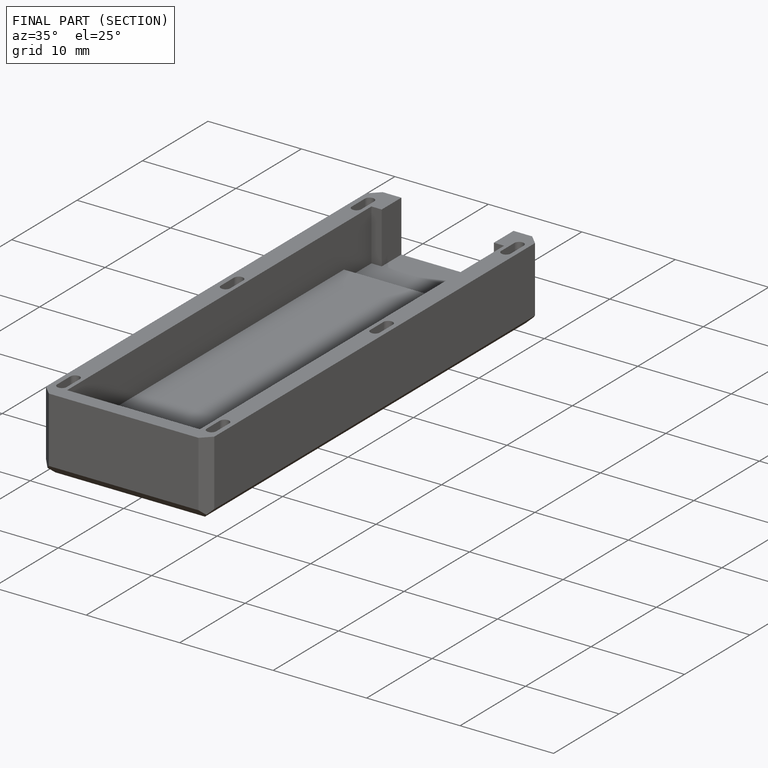
[diagram: finished part — half-section view (interior)]
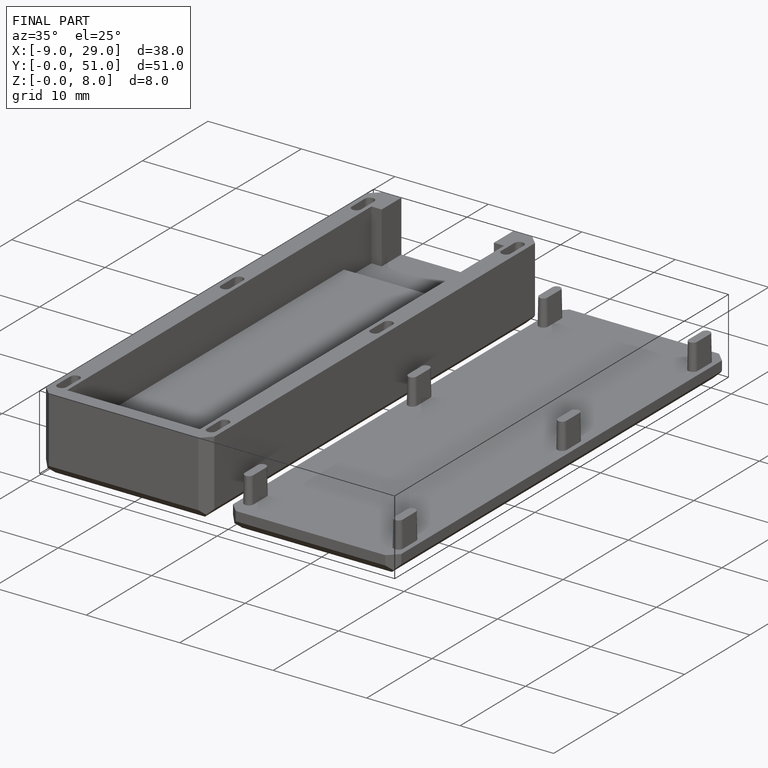
[diagram: finished part — iso view with bounding-box wireframe]
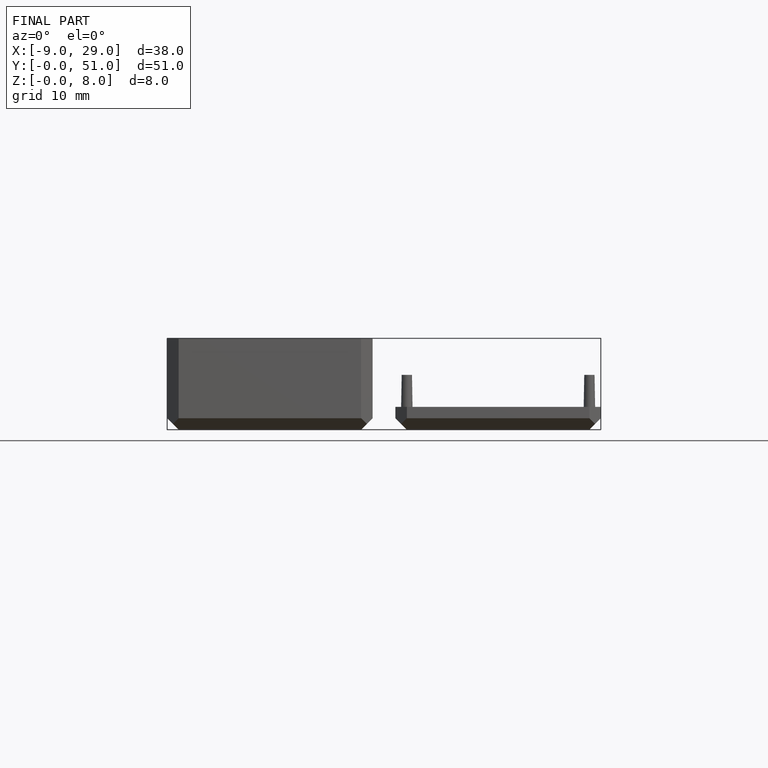
[diagram: finished part — front view with bounding-box wireframe]
